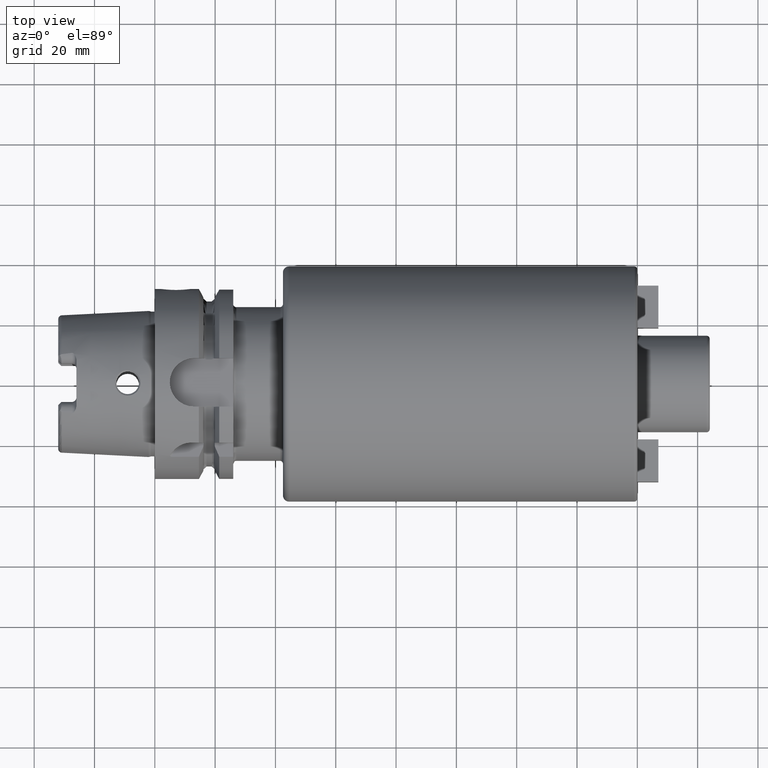
[diagram: clean part render]
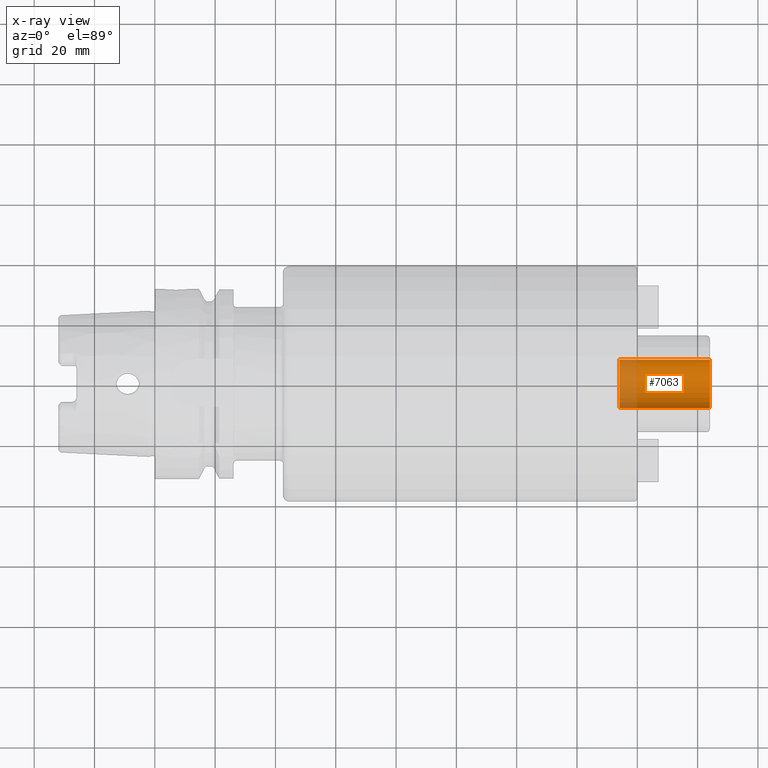
[diagram: x-ray — body ghosted, one internal face saturated and labeled with its STEP entity id]
A machine part, top view, then the same camera in x-ray: the body is ghosted and one INTERNAL B-rep face — a face not visible from any outside direction — is saturated and labeled: STEP entity #7063.
In plain terms, the highlighted cylindrical surface (edge-blend (fillet) strip) has radius 8 mm, axis along (1, 0, 0).
Its self-contained STEP definition (entity closure, byte-faithful):
#6998=CARTESIAN_POINT('',(1.84E2,0.E0,0.E0));
#6999=DIRECTION('',(-1.E0,0.E0,0.E0));
#7000=DIRECTION('',(0.E0,1.E0,0.E0));
#7001=AXIS2_PLACEMENT_3D('',#6998,#6999,#7000);
#7008=DIRECTION('',(-1.E0,0.E0,0.E0));
#7009=VECTOR('',#7008,3.E1);
#7010=CARTESIAN_POINT('',(1.84E2,8.E0,0.E0));
#7011=LINE('',#7010,#7009);
#7012=DIRECTION('',(-1.E0,0.E0,0.E0));
#7013=VECTOR('',#7012,3.E1);
#7014=CARTESIAN_POINT('',(1.84E2,-8.E0,0.E0));
#7015=LINE('',#7014,#7013);
#7016=CARTESIAN_POINT('',(1.54E2,0.E0,0.E0));
#7017=DIRECTION('',(1.E0,0.E0,0.E0));
#7018=DIRECTION('',(0.E0,-1.E0,0.E0));
#7019=AXIS2_PLACEMENT_3D('',#7016,#7017,#7018);
#7036=CARTESIAN_POINT('',(1.54E2,-8.E0,0.E0));
#7037=CARTESIAN_POINT('',(1.54E2,8.E0,0.E0));
#7038=VERTEX_POINT('',#7036);
#7039=VERTEX_POINT('',#7037);
#7040=CARTESIAN_POINT('',(1.84E2,-8.E0,0.E0));
#7041=CARTESIAN_POINT('',(1.84E2,8.E0,0.E0));
#7042=VERTEX_POINT('',#7040);
#7043=VERTEX_POINT('',#7041);
#7048=CARTESIAN_POINT('',(1.375836744501E2,0.E0,0.E0));
#7049=DIRECTION('',(1.E0,0.E0,0.E0));
#7050=DIRECTION('',(0.E0,-1.E0,0.E0));
#7051=AXIS2_PLACEMENT_3D('',#7048,#7049,#7050);
#7052=CYLINDRICAL_SURFACE('',#7051,8.E0);
#7054=ORIENTED_EDGE('',*,*,#7053,.T.);
#7056=ORIENTED_EDGE('',*,*,#7055,.T.);
#7058=ORIENTED_EDGE('',*,*,#7057,.T.);
#7060=ORIENTED_EDGE('',*,*,#7059,.F.);
#7061=EDGE_LOOP('',(#7054,#7056,#7058,#7060));
#7062=FACE_OUTER_BOUND('',#7061,.F.);
#7063=ADVANCED_FACE('',(#7062),#7052,.F.);
#7002=CIRCLE('',#7001,8.E0);
#7020=CIRCLE('',#7019,8.E0);
#7053=EDGE_CURVE('',#7043,#7042,#7002,.T.);
#7055=EDGE_CURVE('',#7042,#7038,#7015,.T.);
#7057=EDGE_CURVE('',#7038,#7039,#7020,.T.);
#7059=EDGE_CURVE('',#7043,#7039,#7011,.T.);